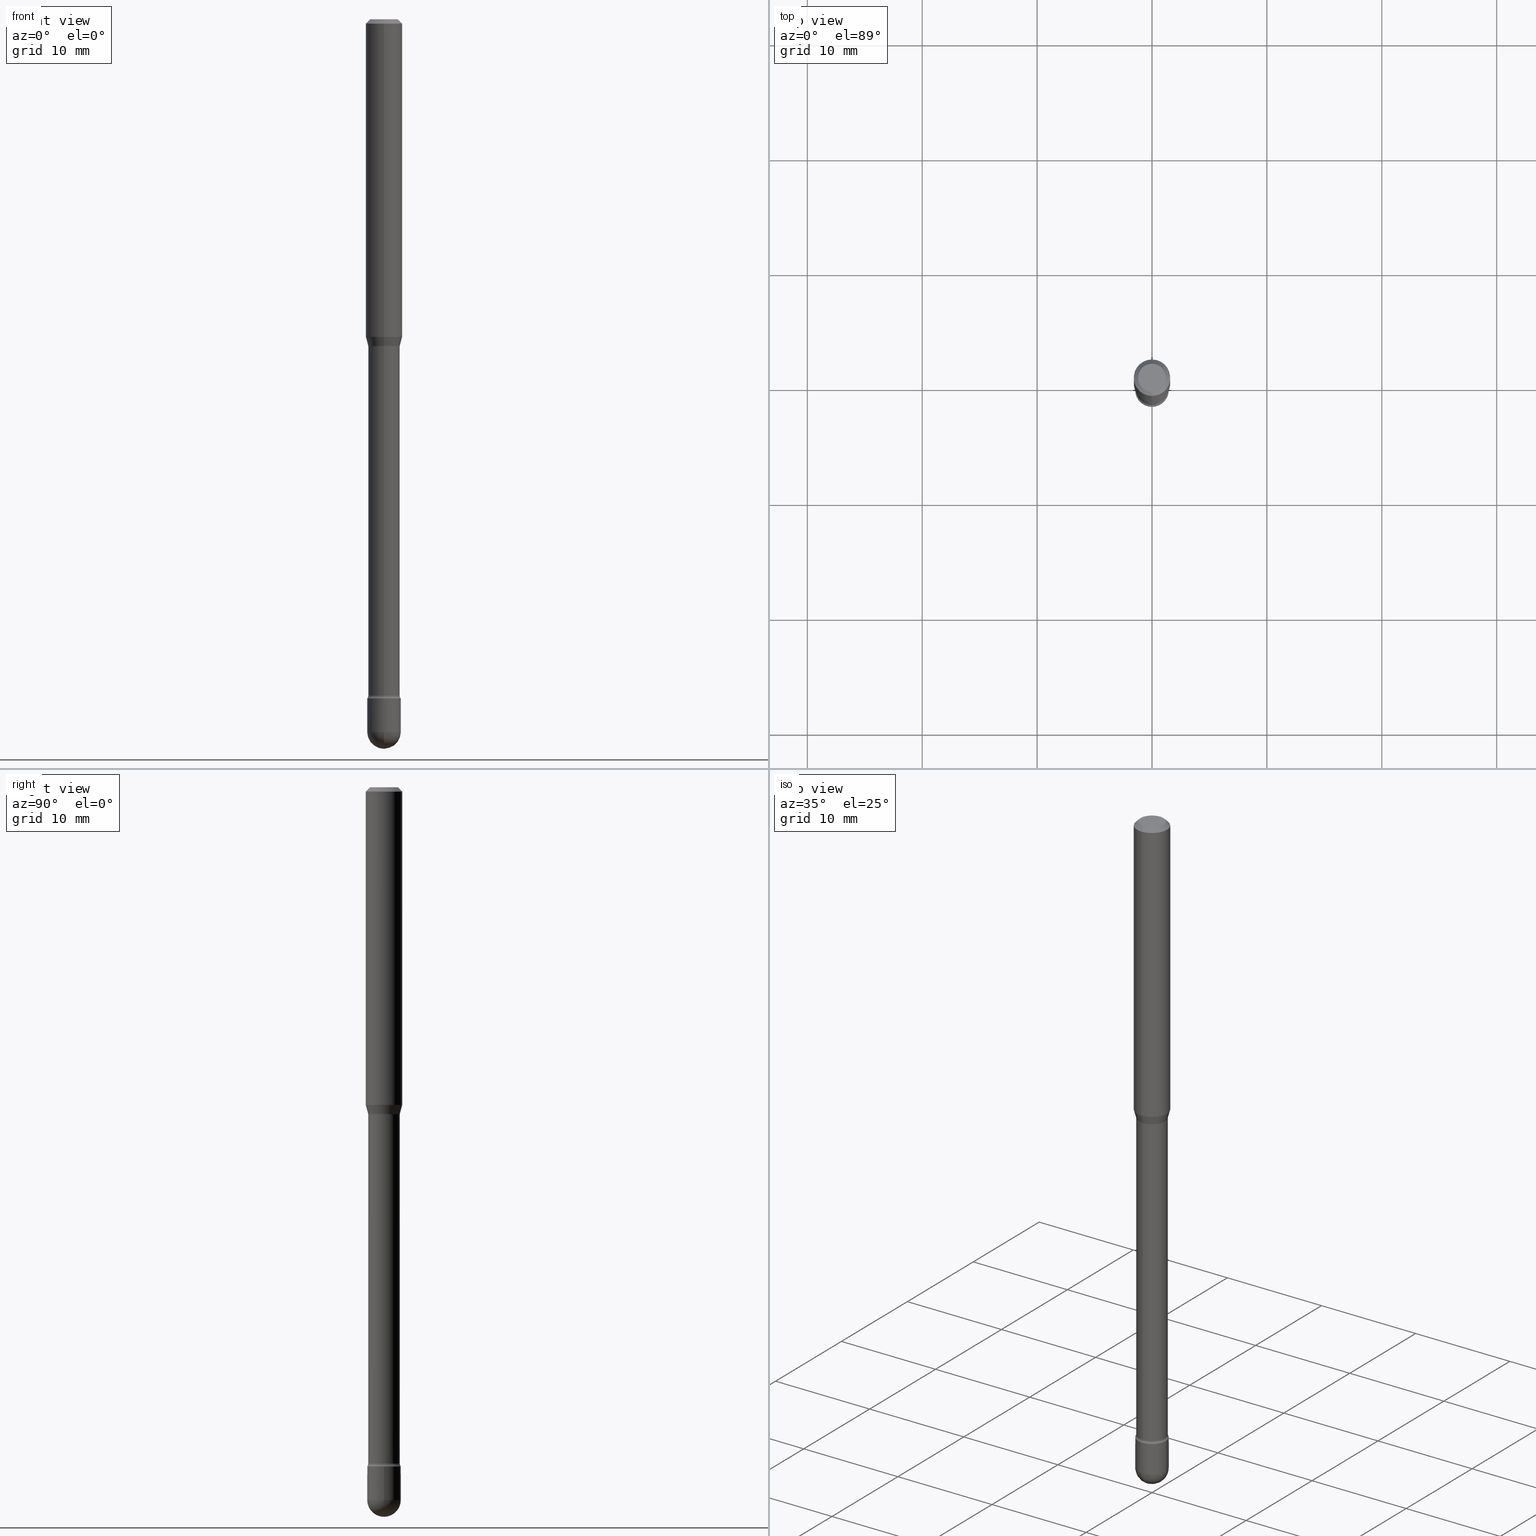
[diagram: canonical four-view strip — front | top / right | iso, engineering-drawing reading convention]
A machine part, canonical four-view strip (front | top / right | iso — engineering-drawing reading convention). The complete STEP part file that produces these views, byte-faithful:
ISO-10303-21;
HEADER;
FILE_DESCRIPTION (( 'STEP AP203' ),
    '1' );
FILE_NAME ('09581.STEP',
    '2024-04-10T01:03:16',
    ( '' ),
    ( '' ),
    'SwSTEP 2.0',
    'SolidWorks 2023',
    '' );
FILE_SCHEMA (( 'CONFIG_CONTROL_DESIGN' ));
ENDSEC;

DATA;
#1 = EDGE_CURVE ( 'NONE', #179, #402, #262, .T. ) ;
#2 = EDGE_LOOP ( 'NONE', ( #70, #46, #177, #335 ) ) ;
#3 = CYLINDRICAL_SURFACE ( 'NONE', #557, 0.05750000000000000250 ) ;
#4 = APPROVAL_DATE_TIME ( #219, #93 ) ;
#5 = CARTESIAN_POINT ( 'NONE',  ( 0.000000000000000000, 0.000000000000000000, 0.000000000000000000 ) ) ;
#6 = CYLINDRICAL_SURFACE ( 'NONE', #452, 0.06250000000000000000 ) ;
#7 = EDGE_CURVE ( 'NONE', #497, #291, #302, .T. ) ;
#8 = ORIENTED_EDGE ( 'NONE', *, *, #548, .T. ) ;
#9 = AXIS2_PLACEMENT_3D ( 'NONE', #227, #488, #313 ) ;
#10 = CARTESIAN_POINT ( 'NONE',  ( 5.973057559107196227E-29, -8.527943170124383355E-15, -2.442499999999999893 ) ) ;
#11 = EDGE_CURVE ( 'NONE', #115, #375, #551, .T. ) ;
#12 = EDGE_LOOP ( 'NONE', ( #360, #71, #138, #388 ) ) ;
#13 = CARTESIAN_POINT ( 'NONE',  ( 5.690581255685221829E-29, -8.124712384723820393E-15, -2.326999999999999957 ) ) ;
#14 = PLANE ( 'NONE',  #499 ) ;
#15 = AXIS2_PLACEMENT_3D ( 'NONE', #44, #309, #403 ) ;
#16 = AXIS2_PLACEMENT_3D ( 'NONE', #429, #304, #475 ) ;
#17 = CARTESIAN_POINT ( 'NONE',  ( -3.774291327289152172E-16, -0.05405000000000391436, -1.121974787463811074 ) ) ;
#18 = COORDINATED_UNIVERSAL_TIME_OFFSET ( 5, 0, .BEHIND. ) ;
#19 = DIRECTION ( 'NONE',  ( -2.445458210436279208E-29, 3.491496512558581868E-15, 1.000000000000000000 ) ) ;
#20 = CARTESIAN_POINT ( 'NONE',  ( -1.169113584055446105E-44, 1.669184350826100908E-30, 4.780733988912460139E-16 ) ) ;
#21 = TOROIDAL_SURFACE ( 'NONE', #97, 0.06905000000000000027, 0.01499999999999998904 ) ;
#22 = CIRCLE ( 'NONE', #346, 0.05750000000000000250 ) ;
#23 = AXIS2_PLACEMENT_3D ( 'NONE', #301, #24, #430 ) ;
#24 = DIRECTION ( 'NONE',  ( -2.445468806185136597E-29, 3.491481338843145583E-15, 1.000000000000000000 ) ) ;
#25 = CARTESIAN_POINT ( 'NONE',  ( 3.963052108702531075E-16, 0.05404999999999203497, -2.317429341715430802 ) ) ;
#26 = EDGE_CURVE ( 'NONE', #137, #530, #174, .T. ) ;
#27 = ORIENTED_EDGE ( 'NONE', *, *, #415, .F. ) ;
#28 = DIRECTION ( 'NONE',  ( -7.105427357601000281E-15, -1.000000000000000000, 0.000000000000000000 ) ) ;
#29 = FACE_OUTER_BOUND ( 'NONE', #400, .T. ) ;
#30 = AXIS2_PLACEMENT_3D ( 'NONE', #193, #279, #464 ) ;
#31 = CONICAL_SURFACE ( 'NONE', #558, 0.05456111260566398613, 0.2617993877991491303 ) ;
#32 = DIRECTION ( 'NONE',  ( 1.000000000000000000, -7.105427357601001070E-15, 4.926315694366502684E-29 ) ) ;
#33 = ORIENTED_EDGE ( 'NONE', *, *, #401, .T. ) ;
#34 = CARTESIAN_POINT ( 'NONE',  ( -0.05750000000000000250, -7.917748049744133834E-15, -2.326999999999999957 ) ) ;
#35 = LENGTH_MEASURE_WITH_UNIT ( LENGTH_MEASURE( 0.02539999999999999897 ), #259 );
#36 = ORIENTED_EDGE ( 'NONE', *, *, #78, .F. ) ;
#37 = DESIGN_CONTEXT ( 'detailed design', #245, 'design' ) ;
#38 = EDGE_CURVE ( 'NONE', #447, #264, #275, .T. ) ;
#39 = EDGE_LOOP ( 'NONE', ( #36, #271, #480, #63 ) ) ;
#40 = FACE_OUTER_BOUND ( 'NONE', #108, .T. ) ;
#41 = LOCAL_TIME ( 21, 3, 16.00000000000000000, #516 ) ;
#42 = EDGE_LOOP ( 'NONE', ( #380, #83 ) ) ;
#43 = CALENDAR_DATE ( 2024, 9, 4 ) ;
#44 = CARTESIAN_POINT ( 'NONE',  ( 4.906297590424068657E-16, 0.06904999999999206217, -2.317429341715430802 ) ) ;
#45 = SECURITY_CLASSIFICATION_LEVEL ( 'unclassified' ) ;
#46 = ORIENTED_EDGE ( 'NONE', *, *, #195, .T. ) ;
#47 = DIRECTION ( 'NONE',  ( 6.982962677686265922E-15, 1.000000000000000000, -3.483106191921935554E-15 ) ) ;
#48 = VERTEX_POINT ( 'NONE', #34 ) ;
#49 = APPLICATION_PROTOCOL_DEFINITION ( 'international standard', 'config_control_design', 1994, #117 ) ;
#50 = EDGE_CURVE ( 'NONE', #225, #179, #72, .T. ) ;
#51 = CARTESIAN_POINT ( 'NONE',  ( 2.661793642945445854E-29, -3.800368855960374326E-15, -1.088464170676043397 ) ) ;
#52 = CIRCLE ( 'NONE', #348, 0.05750000000000007189 ) ;
#53 = VERTEX_POINT ( 'NONE', #417 ) ;
#54 = CARTESIAN_POINT ( 'NONE',  ( 2.734248488522927990E-29, -3.903816070708165479E-15, -1.118092501787273374 ) ) ;
#55 = ORIENTED_EDGE ( 'NONE', *, *, #300, .T. ) ;
#56 = CARTESIAN_POINT ( 'NONE',  ( 4.015203539670203189E-16, 0.05749999999999150929, -2.442500000000000338 ) ) ;
#57 = EDGE_CURVE ( 'NONE', #144, #264, #243, .T. ) ;
#58 = CALENDAR_DATE ( 2024, 9, 4 ) ;
#59 = ORIENTED_EDGE ( 'NONE', *, *, #26, .T. ) ;
#60 = DIRECTION ( 'NONE',  ( 1.000000000000000000, -6.982962677686265922E-15, 4.876176775795935793E-29 ) ) ;
#61 = AXIS2_PLACEMENT_3D ( 'NONE', #321, #187, #365 ) ;
#62 = DIRECTION ( 'NONE',  ( -6.982962677686265922E-15, -1.000000000000000000, 3.491496512558582263E-15 ) ) ;
#63 = ORIENTED_EDGE ( 'NONE', *, *, #38, .F. ) ;
#64 = DIRECTION ( 'NONE',  ( -2.445458210436279208E-29, 3.491496512558581868E-15, 1.000000000000000000 ) ) ;
#65 = CARTESIAN_POINT ( 'NONE',  ( -4.085620730619980656E-16, -0.05750000000000856509, -2.442499999999999893 ) ) ;
#66 = EDGE_CURVE ( 'NONE', #438, #53, #408, .T. ) ;
#67 = DIRECTION ( 'NONE',  ( -6.982962677686265922E-15, -1.000000000000000000, 2.503475335454092652E-15 ) ) ;
#68 = DIRECTION ( 'NONE',  ( 1.839019923739592427E-15, 0.2588190451025238481, 0.9659258262890675351 ) ) ;
#69 = ORIENTED_EDGE ( 'NONE', *, *, #347, .F. ) ;
#70 = ORIENTED_EDGE ( 'NONE', *, *, #555, .F. ) ;
#71 = ORIENTED_EDGE ( 'NONE', *, *, #468, .F. ) ;
#72 = LINE ( 'NONE', #562, #190 ) ;
#73 = CC_DESIGN_PERSON_AND_ORGANIZATION_ASSIGNMENT ( #171, #354, ( #113 ) ) ;
#74 = DIRECTION ( 'NONE',  ( -2.445458210436279208E-29, 3.491496512558581868E-15, 1.000000000000000000 ) ) ;
#75 = AXIS2_PLACEMENT_3D ( 'NONE', #54, #127, #446 ) ;
#76 = AXIS2_PLACEMENT_3D ( 'NONE', #253, #343, #432 ) ;
#77 = CARTESIAN_POINT ( 'NONE',  ( 3.840629472727447874E-16, 0.04749999999999999362, -2.485923956665947374E-16 ) ) ;
#78 = EDGE_CURVE ( 'NONE', #210, #447, #373, .T. ) ;
#79 = COORDINATED_UNIVERSAL_TIME_OFFSET ( 5, 0, .BEHIND. ) ;
#80 = UNCERTAINTY_MEASURE_WITH_UNIT (LENGTH_MEASURE( 1.000000000000000082E-05 ), #267, 'distance_accuracy_value', 'NONE');
#81 = DIRECTION ( 'NONE',  ( 6.982962677686266711E-15, 1.000000000000000000, -4.751039988981321814E-15 ) ) ;
#82 = APPROVAL_STATUS ( 'not_yet_approved' ) ;
#83 = ORIENTED_EDGE ( 'NONE', *, *, #183, .F. ) ;
#84 = AXIS2_PLACEMENT_3D ( 'NONE', #89, #451, #96 ) ;
#85 = DIRECTION ( 'NONE',  ( -6.982962677686265922E-15, -1.000000000000000000, 3.491496512558581474E-15 ) ) ;
#86 = VECTOR ( 'NONE', #151, 39.37007874015748143 ) ;
#87 = PRODUCT_DEFINITION ( 'UNKNOWN', '', #113, #37 ) ;
#88 = CARTESIAN_POINT ( 'NONE',  ( 2.743742455905876148E-29, -3.917371057608552189E-15, -1.121974787463811074 ) ) ;
#89 = CARTESIAN_POINT ( 'NONE',  ( 5.973057559107196227E-29, -8.527943170124383355E-15, -2.442499999999999893 ) ) ;
#90 = CARTESIAN_POINT ( 'NONE',  ( 0.000000000000000000, 0.000000000000000000, 0.000000000000000000 ) ) ;
#91 = FACE_OUTER_BOUND ( 'NONE', #246, .T. ) ;
#92 = ORIENTED_EDGE ( 'NONE', *, *, #555, .T. ) ;
#93 = APPROVAL ( #82, 'UNSPECIFIED' ) ;
#94 = PERSON_AND_ORGANIZATION ( #218, #396 ) ;
#95 = CARTESIAN_POINT ( 'NONE',  ( 2.743754344068948832E-29, -3.917354033082401123E-15, -1.121974787463811296 ) ) ;
#96 = DIRECTION ( 'NONE',  ( 6.982962677686265922E-15, 1.000000000000000000, 0.000000000000000000 ) ) ;
#97 = AXIS2_PLACEMENT_3D ( 'NONE', #95, #358, #450 ) ;
#98 = AXIS2_PLACEMENT_3D ( 'NONE', #201, #556, #298 ) ;
#99 =( GEOMETRIC_REPRESENTATION_CONTEXT ( 3 ) GLOBAL_UNCERTAINTY_ASSIGNED_CONTEXT ( ( #80 ) ) GLOBAL_UNIT_ASSIGNED_CONTEXT ( ( #267, #532, #272 ) ) REPRESENTATION_CONTEXT ( 'NONE', 'WORKASPACE' ) );
#100 = CARTESIAN_POINT ( 'NONE',  ( 2.734248488522927990E-29, -3.903816070708165479E-15, -1.118092501787273374 ) ) ;
#101 = DIRECTION ( 'NONE',  ( -2.445468806185136597E-29, 3.491481338843145583E-15, 1.000000000000000000 ) ) ;
#102 = PRODUCT ( '09581', '09581', '', ( #181 ) ) ;
#103 = APPROVAL_ROLE ( '' ) ;
#104 = CARTESIAN_POINT ( 'NONE',  ( 5.667201165703240905E-29, -8.091261300686981315E-15, -2.317429341715430802 ) ) ;
#105 = CIRCLE ( 'NONE', #292, 0.05750000000000000250 ) ;
#106 = CARTESIAN_POINT ( 'NONE',  ( 2.743754344068948832E-29, -3.917354033082401123E-15, -1.121974787463811296 ) ) ;
#107 = FACE_OUTER_BOUND ( 'NONE', #317, .T. ) ;
#108 = EDGE_LOOP ( 'NONE', ( #55, #145, #242, #407, #381 ) ) ;
#109 = ORIENTED_EDGE ( 'NONE', *, *, #153, .F. ) ;
#110 = CARTESIAN_POINT ( 'NONE',  ( 3.668187315654438745E-31, -5.237244768837902064E-17, -0.01500000000000008271 ) ) ;
#111 = EDGE_LOOP ( 'NONE', ( #549, #261, #204, #109 ) ) ;
#112 = CIRCLE ( 'NONE', #525, 0.05750000000000000250 ) ;
#113 = PRODUCT_DEFINITION_FORMATION_WITH_SPECIFIED_SOURCE ( 'ANY', '', #102, .NOT_KNOWN. ) ;
#114 = DIRECTION ( 'NONE',  ( -6.982962677686265922E-15, -1.000000000000000000, 3.491496512558581474E-15 ) ) ;
#115 = VERTEX_POINT ( 'NONE', #454 ) ;
#116 = ORIENTED_EDGE ( 'NONE', *, *, #457, .F. ) ;
#117 = APPLICATION_CONTEXT ( 'configuration controlled 3d designs of mechanical parts and assemblies' ) ;
#118 = CARTESIAN_POINT ( 'NONE',  ( 4.440892098500893388E-16, 0.06249999999999993755, -0.01500000000000030129 ) ) ;
#119 = DIMENSIONAL_EXPONENTS ( 1.000000000000000000, 0.000000000000000000, 0.000000000000000000, 0.000000000000000000, 0.000000000000000000, 0.000000000000000000, 0.000000000000000000 ) ;
#120 = CARTESIAN_POINT ( 'NONE',  ( -3.809982129783619050E-16, -0.05456111260566789273, -1.118092501787273374 ) ) ;
#121 = ORIENTED_EDGE ( 'NONE', *, *, #153, .T. ) ;
#122 = ORIENTED_EDGE ( 'NONE', *, *, #468, .T. ) ;
#123 = DIRECTION ( 'NONE',  ( -6.982962677686265922E-15, -1.000000000000000000, 3.483106191921935554E-15 ) ) ;
#124 = AXIS2_PLACEMENT_3D ( 'NONE', #295, #553, #154 ) ;
#125 = EDGE_CURVE ( 'NONE', #530, #554, #543, .T. ) ;
#126 = DATE_AND_TIME ( #481, #41 ) ;
#127 = DIRECTION ( 'NONE',  ( -2.445458210436279208E-29, 3.491496512558581868E-15, 1.000000000000000000 ) ) ;
#128 = ORIENTED_EDGE ( 'NONE', *, *, #338, .T. ) ;
#129 = APPROVAL ( #495, 'UNSPECIFIED' ) ;
#130 = CARTESIAN_POINT ( 'NONE',  ( -1.169113584055446105E-44, 1.669184350826100908E-30, 4.780733988912460139E-16 ) ) ;
#131 = ORIENTED_EDGE ( 'NONE', *, *, #1, .T. ) ;
#132 = ADVANCED_FACE ( 'NONE', ( #231 ), #341, .T. ) ;
#133 = PERSON_AND_ORGANIZATION_ROLE ( 'design_supplier' ) ;
#134 = ORIENTED_EDGE ( 'NONE', *, *, #50, .T. ) ;
#135 = TOROIDAL_SURFACE ( 'NONE', #536, 0.06905000000000000027, 0.01499999999999998904 ) ;
#136 = FACE_OUTER_BOUND ( 'NONE', #216, .T. ) ;
#137 = VERTEX_POINT ( 'NONE', #412 ) ;
#138 = ORIENTED_EDGE ( 'NONE', *, *, #415, .T. ) ;
#139 = DIRECTION ( 'NONE',  ( -6.982962677686265922E-15, -1.000000000000000000, 2.527148930309216761E-15 ) ) ;
#140 = CARTESIAN_POINT ( 'NONE',  ( 3.668187315654438745E-31, -5.237244768837902064E-17, -0.01500000000000008271 ) ) ;
#141 = ORIENTED_EDGE ( 'NONE', *, *, #311, .T. ) ;
#142 = CARTESIAN_POINT ( 'NONE',  ( -0.05750000000000000250, 4.085620730620576246E-16, -2.828387676896570712E-30 ) ) ;
#143 = CIRCLE ( 'NONE', #312, 0.05404999999999999388 ) ;
#144 = VERTEX_POINT ( 'NONE', #270 ) ;
#145 = ORIENTED_EDGE ( 'NONE', *, *, #282, .T. ) ;
#146 = FACE_OUTER_BOUND ( 'NONE', #508, .T. ) ;
#147 = CARTESIAN_POINT ( 'NONE',  ( 5.690605911992812897E-29, -8.124677075487999464E-15, -2.326999999999999957 ) ) ;
#148 = CARTESIAN_POINT ( 'NONE',  ( 4.015203539670172127E-16, 0.05749999999999187705, -2.327000000000000401 ) ) ;
#149 = CC_DESIGN_PERSON_AND_ORGANIZATION_ASSIGNMENT ( #409, #362, ( #102 ) ) ;
#150 = LOCAL_TIME ( 21, 3, 16.00000000000000000, #18 ) ;
#151 = DIRECTION ( 'NONE',  ( -2.445458210436279208E-29, 3.491496512558582263E-15, 1.000000000000000000 ) ) ;
#152 = CARTESIAN_POINT ( 'NONE',  ( 5.667176610803941573E-29, -8.091296464700355327E-15, -2.317429341715430802 ) ) ;
#153 = EDGE_CURVE ( 'NONE', #331, #115, #434, .T. ) ;
#154 = DIRECTION ( 'NONE',  ( -6.982962677686267499E-15, -1.000000000000000000, 0.000000000000000000 ) ) ;
#155 = AXIS2_PLACEMENT_3D ( 'NONE', #10, #182, #363 ) ;
#156 = CIRCLE ( 'NONE', #374, 0.01499999999999999424 ) ;
#157 = ORIENTED_EDGE ( 'NONE', *, *, #455, .F. ) ;
#158 = FACE_OUTER_BOUND ( 'NONE', #12, .T. ) ;
#159 = LINE ( 'NONE', #563, #265 ) ;
#160 = ADVANCED_FACE ( 'NONE', ( #260 ), #6, .T. ) ;
#161 = DIRECTION ( 'NONE',  ( -2.445458210436279208E-29, 3.491496512558581868E-15, 1.000000000000000000 ) ) ;
#162 = ADVANCED_FACE ( 'NONE', ( #224 ), #533, .T. ) ;
#163 = AXIS2_PLACEMENT_3D ( 'NONE', #413, #519, #393 ) ;
#164 = APPROVAL_ROLE ( '' ) ;
#165 = AXIS2_PLACEMENT_3D ( 'NONE', #290, #161, #114 ) ;
#166 = EDGE_LOOP ( 'NONE', ( #223, #405, #256, #184 ) ) ;
#167 = PERSON_AND_ORGANIZATION ( #218, #396 ) ;
#168 = ORIENTED_EDGE ( 'NONE', *, *, #311, .F. ) ;
#169 = DIRECTION ( 'NONE',  ( 1.000000000000000000, -6.982962677686265922E-15, 4.876176775795935232E-29 ) ) ;
#170 = ORIENTED_EDGE ( 'NONE', *, *, #395, .F. ) ;
#171 = PERSON_AND_ORGANIZATION ( #218, #396 ) ;
#172 = EDGE_LOOP ( 'NONE', ( #234, #501, #278, #439 ) ) ;
#173 = DIRECTION ( 'NONE',  ( -2.445458210436279208E-29, 3.491496512558581868E-15, 1.000000000000000000 ) ) ;
#174 = CIRCLE ( 'NONE', #163, 0.05405000000000013266 ) ;
#175 = CARTESIAN_POINT ( 'NONE',  ( 5.973057559107196227E-29, -8.527943170124383355E-15, -2.442499999999999893 ) ) ;
#176 = PRODUCT_RELATED_PRODUCT_CATEGORY ( 'detail', '', ( #102 ) ) ;
#177 = ORIENTED_EDGE ( 'NONE', *, *, #471, .T. ) ;
#178 = LOCAL_TIME ( 21, 3, 16.00000000000000000, #445 ) ;
#179 = VERTEX_POINT ( 'NONE', #478 ) ;
#180 = DIRECTION ( 'NONE',  ( -2.445468806185136877E-29, 3.491481338843145188E-15, 1.000000000000000000 ) ) ;
#181 = MECHANICAL_CONTEXT ( 'NONE', #117, 'mechanical' ) ;
#182 = DIRECTION ( 'NONE',  ( -2.445468806185136597E-29, 3.491481338843145583E-15, 1.000000000000000000 ) ) ;
#183 = EDGE_CURVE ( 'NONE', #554, #433, #22, .T. ) ;
#184 = ORIENTED_EDGE ( 'NONE', *, *, #195, .F. ) ;
#185 = DIRECTION ( 'NONE',  ( -2.445468806185136597E-29, 3.491481338843145583E-15, 1.000000000000000000 ) ) ;
#186 = ADVANCED_FACE ( 'NONE', ( #442 ), #308, .T. ) ;
#187 = DIRECTION ( 'NONE',  ( -1.000000000000000000, 6.982962677686265922E-15, -4.883557194083112340E-29 ) ) ;
#188 = DIRECTION ( 'NONE',  ( -2.438088387897960049E-29, 3.491481338843145188E-15, 1.000000000000000000 ) ) ;
#189 = ADVANCED_FACE ( 'NONE', ( #521 ), #21, .F. ) ;
#190 = VECTOR ( 'NONE', #269, 39.37007874015748143 ) ;
#191 = CIRCLE ( 'NONE', #98, 0.04749999999999999362 ) ;
#192 = CC_DESIGN_DATE_AND_TIME_ASSIGNMENT ( #214, #397, ( #87 ) ) ;
#193 = CARTESIAN_POINT ( 'NONE',  ( 5.973057559107196227E-29, -8.527943170124383355E-15, -2.442499999999999893 ) ) ;
#194 = DIRECTION ( 'NONE',  ( 1.000000000000000000, -6.982962677686273810E-15, 0.000000000000000000 ) ) ;
#195 = EDGE_CURVE ( 'NONE', #53, #438, #427, .T. ) ;
#196 = DIRECTION ( 'NONE',  ( -2.445458210436279208E-29, 3.491496512558581868E-15, 1.000000000000000000 ) ) ;
#197 = AXIS2_PLACEMENT_3D ( 'NONE', #5, #448, #315 ) ;
#198 = APPROVAL_PERSON_ORGANIZATION ( #534, #129, #103 ) ;
#199 = DIRECTION ( 'NONE',  ( -1.000000000000000000, 7.105427357601001070E-15, -4.926315508542082329E-29 ) ) ;
#200 = ADVANCED_FACE ( 'NONE', ( #40 ), #3, .T. ) ;
#201 = CARTESIAN_POINT ( 'NONE',  ( 2.023475808552922307E-45, -2.889157115507960556E-31, -8.274631132006210161E-17 ) ) ;
#202 = ADVANCED_BREP_SHAPE_REPRESENTATION ( '09581', ( #436, #258, #229 ), #99 ) ;
#203 = CARTESIAN_POINT ( 'NONE',  ( 4.364351673553919652E-16, 0.06249999999999995143, -0.01500000000000030129 ) ) ;
#204 = ORIENTED_EDGE ( 'NONE', *, *, #294, .F. ) ;
#205 = CLOSED_SHELL ( 'NONE', ( #200, #307, #378, #186, #162 ) ) ;
#206 = CONICAL_SURFACE ( 'NONE', #566, 0.06250000000000000000, 0.7853981633974483900 ) ;
#207 = CARTESIAN_POINT ( 'NONE',  ( -4.364351673553650454E-16, -0.06250000000000381639, -1.088464170676042952 ) ) ;
#208 = ADVANCED_FACE ( 'NONE', ( #136 ), #352, .T. ) ;
#209 = LINE ( 'NONE', #389, #485 ) ;
#210 = VERTEX_POINT ( 'NONE', #487 ) ;
#211 = ORIENTED_EDGE ( 'NONE', *, *, #531, .F. ) ;
#212 = DIRECTION ( 'NONE',  ( 0.000000000000000000, 0.000000000000000000, 1.000000000000000000 ) ) ;
#213 = VECTOR ( 'NONE', #327, 39.37007874015748143 ) ;
#214 = DATE_AND_TIME ( #351, #526 ) ;
#215 = CIRCLE ( 'NONE', #277, 0.06250000000000000000 ) ;
#216 = EDGE_LOOP ( 'NONE', ( #59, #523, #288, #168 ) ) ;
#217 = CARTESIAN_POINT ( 'NONE',  ( 0.000000000000000000, 0.000000000000000000, 0.000000000000000000 ) ) ;
#218 = PERSON ( 'UNSPECIFIED', 'UNSPECIFIED', 'UNSPECIFIED', ('UNSPECIFIED'), ('UNSPECIFIED'), ('UNSPECIFIED') ) ;
#219 = DATE_AND_TIME ( #43, #178 ) ;
#220 = DIRECTION ( 'NONE',  ( -6.982962677686265922E-15, -1.000000000000000000, 4.370956789862821150E-15 ) ) ;
#221 = CC_DESIGN_PERSON_AND_ORGANIZATION_ASSIGNMENT ( #222, #233, ( #410 ) ) ;
#222 = PERSON_AND_ORGANIZATION ( #218, #396 ) ;
#223 = ORIENTED_EDGE ( 'NONE', *, *, #538, .F. ) ;
#224 = FACE_OUTER_BOUND ( 'NONE', #235, .T. ) ;
#225 = VERTEX_POINT ( 'NONE', #318 ) ;
#226 = EDGE_LOOP ( 'NONE', ( #157, #310, #515, #211 ) ) ;
#227 = CARTESIAN_POINT ( 'NONE',  ( -1.169113584055446105E-44, 1.669184350826100908E-30, 4.780733988912460139E-16 ) ) ;
#228 = DIRECTION ( 'NONE',  ( 2.445458210436279208E-29, -3.491496512558581868E-15, -1.000000000000000000 ) ) ;
#229 = AXIS2_PLACEMENT_3D ( 'NONE', #90, #212, #404 ) ;
#230 = ORIENTED_EDGE ( 'NONE', *, *, #347, .T. ) ;
#231 = FACE_OUTER_BOUND ( 'NONE', #561, .T. ) ;
#232 = EDGE_CURVE ( 'NONE', #264, #144, #143, .T. ) ;
#233 = PERSON_AND_ORGANIZATION_ROLE ( 'classification_officer' ) ;
#234 = ORIENTED_EDGE ( 'NONE', *, *, #511, .T. ) ;
#235 = EDGE_LOOP ( 'NONE', ( #513, #230, #121, #280, #170 ) ) ;
#236 = ORIENTED_EDGE ( 'NONE', *, *, #66, .T. ) ;
#237 = DIRECTION ( 'NONE',  ( -2.445468806185136597E-29, 3.491481338843145583E-15, 1.000000000000000000 ) ) ;
#238 = APPROVAL ( #565, 'UNSPECIFIED' ) ;
#239 = ADVANCED_FACE ( 'NONE', ( #91 ), #394, .F. ) ;
#240 = COORDINATED_UNIVERSAL_TIME_OFFSET ( 5, 0, .BEHIND. ) ;
#241 = CARTESIAN_POINT ( 'NONE',  ( 3.316907271900976096E-16, 0.04749999999999999362, 3.181745943905930804E-17 ) ) ;
#242 = ORIENTED_EDGE ( 'NONE', *, *, #338, .F. ) ;
#243 = CIRCLE ( 'NONE', #419, 0.05404999999999999388 ) ;
#244 = TOROIDAL_SURFACE ( 'NONE', #165, 0.06905000000000015292, 0.01500000000000002547 ) ;
#245 = APPLICATION_CONTEXT ( 'configuration controlled 3d designs of mechanical parts and assemblies' ) ;
#246 = EDGE_LOOP ( 'NONE', ( #251, #273, #449, #8 ) ) ;
#247 = PLANE ( 'NONE',  #546 ) ;
#248 = DIRECTION ( 'NONE',  ( -2.445458210436279208E-29, 3.491496512558581868E-15, 1.000000000000000000 ) ) ;
#249 = CYLINDRICAL_SURFACE ( 'NONE', #250, 0.06250000000000000000 ) ;
#250 = AXIS2_PLACEMENT_3D ( 'NONE', #20, #64, #281 ) ;
#251 = ORIENTED_EDGE ( 'NONE', *, *, #125, .F. ) ;
#252 = DIRECTION ( 'NONE',  ( 2.445458210436279208E-29, -3.491496512558581868E-15, -1.000000000000000000 ) ) ;
#253 = CARTESIAN_POINT ( 'NONE',  ( 5.690581255685221829E-29, -8.124712384723820393E-15, -2.326999999999999957 ) ) ;
#254 = DIRECTION ( 'NONE',  ( -2.445458210436279208E-29, 3.491496512558581868E-15, 1.000000000000000000 ) ) ;
#255 = CARTESIAN_POINT ( 'NONE',  ( 4.906297590423765932E-16, 0.06904999999999608673, -1.121974787463811518 ) ) ;
#256 = ORIENTED_EDGE ( 'NONE', *, *, #491, .T. ) ;
#257 = CARTESIAN_POINT ( 'NONE',  ( 2.734248488522927990E-29, -3.903816070708165479E-15, -1.118092501787273374 ) ) ;
#258 = MANIFOLD_SOLID_BREP ( 'Body-Move/Copy2[2]', #473 ) ;
#259 =( LENGTH_UNIT ( ) NAMED_UNIT ( * ) SI_UNIT ( $, .METRE. ) );
#260 = FACE_OUTER_BOUND ( 'NONE', #2, .T. ) ;
#261 = ORIENTED_EDGE ( 'NONE', *, *, #7, .T. ) ;
#262 = CIRCLE ( 'NONE', #443, 0.06250000000000000000 ) ;
#263 = APPROVAL_ROLE ( '' ) ;
#264 = VERTEX_POINT ( 'NONE', #17 ) ;
#265 = VECTOR ( 'NONE', #465, 39.37007874015748854 ) ;
#266 = DIRECTION ( 'NONE',  ( -2.445458210436279208E-29, 3.491496512558581868E-15, 1.000000000000000000 ) ) ;
#267 =( CONVERSION_BASED_UNIT ( 'INCH', #35 ) LENGTH_UNIT ( ) NAMED_UNIT ( #119 ) );
#268 = ORIENTED_EDGE ( 'NONE', *, *, #511, .F. ) ;
#269 = DIRECTION ( 'NONE',  ( -4.851104656540964275E-15, -0.7071067811865500152, -0.7071067811865450192 ) ) ;
#270 = CARTESIAN_POINT ( 'NONE',  ( 3.840483486783911022E-16, 0.05404999999999607341, -1.121974787463811296 ) ) ;
#271 = ORIENTED_EDGE ( 'NONE', *, *, #457, .T. ) ;
#272 =( NAMED_UNIT ( * ) SI_UNIT ( $, .STERADIAN. ) SOLID_ANGLE_UNIT ( ) );
#273 = ORIENTED_EDGE ( 'NONE', *, *, #26, .F. ) ;
#274 = CARTESIAN_POINT ( 'NONE',  ( 2.661793642945445854E-29, -3.800368855960374326E-15, -1.088464170676043397 ) ) ;
#275 = CIRCLE ( 'NONE', #61, 0.01499999999999999424 ) ;
#276 = DIRECTION ( 'NONE',  ( -1.000000000000000000, 6.982962677686266711E-15, -4.883557194083112901E-29 ) ) ;
#277 = AXIS2_PLACEMENT_3D ( 'NONE', #110, #344, #123 ) ;
#278 = ORIENTED_EDGE ( 'NONE', *, *, #66, .F. ) ;
#279 = DIRECTION ( 'NONE',  ( -1.000000000000000000, 6.982962677686266711E-15, -4.883557194083112901E-29 ) ) ;
#280 = ORIENTED_EDGE ( 'NONE', *, *, #11, .T. ) ;
#281 = DIRECTION ( 'NONE',  ( -6.982962677686265922E-15, -1.000000000000000000, 3.491496512558581474E-15 ) ) ;
#282 = EDGE_CURVE ( 'NONE', #486, #48, #424, .T. ) ;
#283 = FACE_OUTER_BOUND ( 'NONE', #42, .T. ) ;
#284 = AXIS2_PLACEMENT_3D ( 'NONE', #100, #196, #421 ) ;
#285 = AXIS2_PLACEMENT_3D ( 'NONE', #148, #330, #500 ) ;
#286 = APPROVAL_DATE_TIME ( #325, #129 ) ;
#287 = DIRECTION ( 'NONE',  ( -2.445468806185136597E-29, 3.491481338843145583E-15, 1.000000000000000000 ) ) ;
#288 = ORIENTED_EDGE ( 'NONE', *, *, #232, .F. ) ;
#289 = ADVANCED_FACE ( 'NONE', ( #107 ), #135, .F. ) ;
#290 = CARTESIAN_POINT ( 'NONE',  ( 5.667201165703240905E-29, -8.091261300686981315E-15, -2.317429341715430802 ) ) ;
#291 = VERTEX_POINT ( 'NONE', #56 ) ;
#292 = AXIS2_PLACEMENT_3D ( 'NONE', #463, #287, #194 ) ;
#293 = APPROVAL_PERSON_ORGANIZATION ( #94, #238, #164 ) ;
#294 = EDGE_CURVE ( 'NONE', #115, #291, #105, .T. ) ;
#295 = CARTESIAN_POINT ( 'NONE',  ( -4.821735728941811245E-16, -0.06905000000000824367, -2.317429341715430358 ) ) ;
#296 = ORIENTED_EDGE ( 'NONE', *, *, #395, .T. ) ;
#297 = ADVANCED_FACE ( 'NONE', ( #502 ), #366, .T. ) ;
#298 = DIRECTION ( 'NONE',  ( -6.982962677686266711E-15, -1.000000000000000000, 3.491496512558582263E-15 ) ) ;
#299 = ORIENTED_EDGE ( 'NONE', *, *, #359, .F. ) ;
#300 = EDGE_CURVE ( 'NONE', #291, #486, #112, .T. ) ;
#301 = CARTESIAN_POINT ( 'NONE',  ( 5.690605911992812897E-29, -8.124677075487999464E-15, -2.326999999999999957 ) ) ;
#302 = CIRCLE ( 'NONE', #84, 0.05750000000000007189 ) ;
#303 = CIRCLE ( 'NONE', #23, 0.05750000000000000250 ) ;
#304 = DIRECTION ( 'NONE',  ( -2.445458210436279208E-29, 3.491496512558581868E-15, 1.000000000000000000 ) ) ;
#305 = PERSON_AND_ORGANIZATION ( #218, #396 ) ;
#306 = ORIENTED_EDGE ( 'NONE', *, *, #1, .F. ) ;
#307 = ADVANCED_FACE ( 'NONE', ( #324 ), #425, .T. ) ;
#308 = SPHERICAL_SURFACE ( 'NONE', #484, 0.05750000000000007189 ) ;
#309 = DIRECTION ( 'NONE',  ( 1.000000000000000000, -7.105427357601001070E-15, 4.926315694366502684E-29 ) ) ;
#310 = ORIENTED_EDGE ( 'NONE', *, *, #125, .T. ) ;
#311 = EDGE_CURVE ( 'NONE', #137, #264, #456, .T. ) ;
#312 = AXIS2_PLACEMENT_3D ( 'NONE', #88, #489, #139 ) ;
#313 = DIRECTION ( 'NONE',  ( -6.982962677686265922E-15, -1.000000000000000000, 3.491496512558581474E-15 ) ) ;
#314 = AXIS2_PLACEMENT_3D ( 'NONE', #384, #560, #509 ) ;
#315 = DIRECTION ( 'NONE',  ( 1.000000000000000000, -6.982962677686265922E-15, 4.876176775795935232E-29 ) ) ;
#316 = DIRECTION ( 'NONE',  ( -6.982962677686265922E-15, -1.000000000000000000, 3.483106191921935554E-15 ) ) ;
#317 = EDGE_LOOP ( 'NONE', ( #116, #268, #431, #361 ) ) ;
#318 = CARTESIAN_POINT ( 'NONE',  ( -3.773273898774340269E-16, -0.04749999999999999362, 8.309977302647053418E-17 ) ) ;
#319 = CARTESIAN_POINT ( 'NONE',  ( 4.440892098500625669E-16, 0.06250000000000000000, 2.598548668563346965E-16 ) ) ;
#320 = DIRECTION ( 'NONE',  ( -6.982962677686265922E-15, -1.000000000000000000, 4.751039988981327336E-15 ) ) ;
#321 = CARTESIAN_POINT ( 'NONE',  ( -4.821735728942093263E-16, -0.06905000000000392768, -1.121974787463811074 ) ) ;
#322 = VECTOR ( 'NONE', #180, 39.37007874015748143 ) ;
#323 = AXIS2_PLACEMENT_3D ( 'NONE', #147, #237, #426 ) ;
#324 = FACE_OUTER_BOUND ( 'NONE', #498, .T. ) ;
#325 = DATE_AND_TIME ( #58, #559 ) ;
#326 = ORIENTED_EDGE ( 'NONE', *, *, #7, .F. ) ;
#327 = DIRECTION ( 'NONE',  ( -2.445468806185136877E-29, 3.491481338843145188E-15, 1.000000000000000000 ) ) ;
#328 = LINE ( 'NONE', #540, #86 ) ;
#329 = DATE_AND_TIME ( #371, #150 ) ;
#330 = DIRECTION ( 'NONE',  ( -2.445458210436278647E-29, 3.491496512558582263E-15, 1.000000000000000000 ) ) ;
#331 = VERTEX_POINT ( 'NONE', #65 ) ;
#332 = AXIS2_PLACEMENT_3D ( 'NONE', #51, #266, #220 ) ;
#333 = CC_DESIGN_APPROVAL ( #93, ( #113 ) ) ;
#334 = ORIENTED_EDGE ( 'NONE', *, *, #494, .F. ) ;
#335 = ORIENTED_EDGE ( 'NONE', *, *, #490, .F. ) ;
#336 = ADVANCED_FACE ( 'NONE', ( #539 ), #249, .T. ) ;
#337 = DIRECTION ( 'NONE',  ( -2.445458210436279208E-29, 3.491496512558582263E-15, 1.000000000000000000 ) ) ;
#338 = EDGE_CURVE ( 'NONE', #375, #48, #537, .T. ) ;
#339 = PRODUCT_DEFINITION_SHAPE ( 'NONE', 'NONE',  #87 ) ;
#340 = LINE ( 'NONE', #506, #453 ) ;
#341 = CONICAL_SURFACE ( 'NONE', #459, 0.06250000000000000000, 0.7853981633974483900 ) ;
#342 = CIRCLE ( 'NONE', #507, 0.05750000000000000250 ) ;
#343 = DIRECTION ( 'NONE',  ( -2.445458210436279208E-29, 3.491496512558581868E-15, 1.000000000000000000 ) ) ;
#344 = DIRECTION ( 'NONE',  ( -2.445458210436279208E-29, 3.491496512558581868E-15, 1.000000000000000000 ) ) ;
#345 = CARTESIAN_POINT ( 'NONE',  ( 6.116130618544232584E-29, -8.725182487560315771E-15, -2.500000000000000000 ) ) ;
#346 = AXIS2_PLACEMENT_3D ( 'NONE', #13, #406, #320 ) ;
#347 = EDGE_CURVE ( 'NONE', #486, #331, #342, .T. ) ;
#348 = AXIS2_PLACEMENT_3D ( 'NONE', #472, #199, #28 ) ;
#349 = CYLINDRICAL_SURFACE ( 'NONE', #9, 0.05405000000000006327 ) ;
#350 = CARTESIAN_POINT ( 'NONE',  ( -1.169113584055446105E-44, 1.669184350826100908E-30, 4.780733988912460139E-16 ) ) ;
#351 = CALENDAR_DATE ( 2024, 9, 4 ) ;
#352 = CYLINDRICAL_SURFACE ( 'NONE', #385, 0.05405000000000006327 ) ;
#353 = EDGE_LOOP ( 'NONE', ( #128, #296 ) ) ;
#354 = PERSON_AND_ORGANIZATION_ROLE ( 'creator' ) ;
#355 = AXIS2_PLACEMENT_3D ( 'NONE', #274, #524, #529 ) ;
#356 = DIRECTION ( 'NONE',  ( -2.445458210436279208E-29, 3.491496512558582263E-15, 1.000000000000000000 ) ) ;
#357 = CIRCLE ( 'NONE', #314, 0.04749999999999999362 ) ;
#358 = DIRECTION ( 'NONE',  ( -2.445458210436279208E-29, 3.491496512558581868E-15, 1.000000000000000000 ) ) ;
#359 = EDGE_CURVE ( 'NONE', #530, #144, #328, .T. ) ;
#360 = ORIENTED_EDGE ( 'NONE', *, *, #50, .F. ) ;
#361 = ORIENTED_EDGE ( 'NONE', *, *, #232, .T. ) ;
#362 = PERSON_AND_ORGANIZATION_ROLE ( 'design_owner' ) ;
#363 = DIRECTION ( 'NONE',  ( 1.000000000000000000, -6.982962677686273810E-15, 0.000000000000000000 ) ) ;
#364 = FACE_OUTER_BOUND ( 'NONE', #353, .T. ) ;
#365 = DIRECTION ( 'NONE',  ( -6.982962677686266711E-15, -1.000000000000000000, 0.000000000000000000 ) ) ;
#366 = CONICAL_SURFACE ( 'NONE', #284, 0.05456111260566398613, 0.2617993877991491303 ) ;
#367 = CC_DESIGN_APPROVAL ( #238, ( #87 ) ) ;
#368 = DIRECTION ( 'NONE',  ( 1.000000000000000000, -6.982962677686273810E-15, 0.000000000000000000 ) ) ;
#369 = DIRECTION ( 'NONE',  ( -2.445458210436279208E-29, 3.491496512558582263E-15, 1.000000000000000000 ) ) ;
#370 = DIRECTION ( 'NONE',  ( 1.000000000000000000, -6.982962677686273810E-15, 0.000000000000000000 ) ) ;
#371 = CALENDAR_DATE ( 2024, 9, 4 ) ;
#372 = CARTESIAN_POINT ( 'NONE',  ( -3.774291327289431232E-16, -0.05405000000000006327, 6.667887853950376346E-16 ) ) ;
#373 = CIRCLE ( 'NONE', #75, 0.05456111260566398613 ) ;
#374 = AXIS2_PLACEMENT_3D ( 'NONE', #255, #32, #550 ) ;
#375 = VERTEX_POINT ( 'NONE', #458 ) ;
#376 = DIRECTION ( 'NONE',  ( -6.982962677686265922E-15, -1.000000000000000000, 5.054297860618420899E-15 ) ) ;
#377 = CC_DESIGN_DATE_AND_TIME_ASSIGNMENT ( #329, #422, ( #410 ) ) ;
#378 = ADVANCED_FACE ( 'NONE', ( #364 ), #14, .T. ) ;
#379 = DIRECTION ( 'NONE',  ( -2.445458210436279208E-29, 3.491496512558581868E-15, 1.000000000000000000 ) ) ;
#380 = ORIENTED_EDGE ( 'NONE', *, *, #548, .F. ) ;
#381 = ORIENTED_EDGE ( 'NONE', *, *, #294, .T. ) ;
#382 = FACE_OUTER_BOUND ( 'NONE', #166, .T. ) ;
#383 = ADVANCED_FACE ( 'NONE', ( #146 ), #247, .F. ) ;
#384 = CARTESIAN_POINT ( 'NONE',  ( 2.023475808552922307E-45, -2.889157115507960556E-31, -8.274631132006210161E-17 ) ) ;
#385 = AXIS2_PLACEMENT_3D ( 'NONE', #130, #483, #85 ) ;
#386 = CIRCLE ( 'NONE', #16, 0.05456111260566398613 ) ;
#387 = CARTESIAN_POINT ( 'NONE',  ( -0.05750000000000000250, -7.917748049744133834E-15, -2.442499999999999893 ) ) ;
#388 = ORIENTED_EDGE ( 'NONE', *, *, #490, .T. ) ;
#389 = CARTESIAN_POINT ( 'NONE',  ( -4.364351673553916201E-16, -0.06250000000000000000, 6.962919309261573807E-16 ) ) ;
#390 = ORIENTED_EDGE ( 'NONE', *, *, #57, .F. ) ;
#391 = ADVANCED_FACE ( 'NONE', ( #283 ), #461, .F. ) ;
#392 = CARTESIAN_POINT ( 'NONE',  ( 4.085620730621145212E-16, 0.05749999999999188399, -2.327000000000000401 ) ) ;
#393 = DIRECTION ( 'NONE',  ( -6.982962677686265922E-15, -1.000000000000000000, 5.054297860618420899E-15 ) ) ;
#394 = TOROIDAL_SURFACE ( 'NONE', #466, 0.06905000000000015292, 0.01500000000000002547 ) ;
#395 = EDGE_CURVE ( 'NONE', #48, #375, #303, .T. ) ;
#396 = ORGANIZATION ( 'UNSPECIFIED', 'UNSPECIFIED', '' ) ;
#397 = DATE_TIME_ROLE ( 'creation_date' ) ;
#398 = ORIENTED_EDGE ( 'NONE', *, *, #494, .T. ) ;
#399 = DIRECTION ( 'NONE',  ( -2.445468806185136597E-29, 3.491481338843145583E-15, 1.000000000000000000 ) ) ;
#400 = EDGE_LOOP ( 'NONE', ( #299, #544, #141, #390 ) ) ;
#401 = EDGE_CURVE ( 'NONE', #497, #331, #52, .T. ) ;
#402 = VERTEX_POINT ( 'NONE', #118 ) ;
#403 = DIRECTION ( 'NONE',  ( 7.105427357601006592E-15, 1.000000000000000000, 0.000000000000000000 ) ) ;
#404 = DIRECTION ( 'NONE',  ( 1.000000000000000000, 0.000000000000000000, 0.000000000000000000 ) ) ;
#405 = ORIENTED_EDGE ( 'NONE', *, *, #78, .T. ) ;
#406 = DIRECTION ( 'NONE',  ( -2.445458210436279208E-29, 3.491496512558581868E-15, 1.000000000000000000 ) ) ;
#407 = ORIENTED_EDGE ( 'NONE', *, *, #11, .F. ) ;
#408 = CIRCLE ( 'NONE', #332, 0.06250000000000000000 ) ;
#409 = PERSON_AND_ORGANIZATION ( #218, #396 ) ;
#410 = SECURITY_CLASSIFICATION ( '', '', #45 ) ;
#411 = CC_DESIGN_APPROVAL ( #129, ( #410 ) ) ;
#412 = CARTESIAN_POINT ( 'NONE',  ( -3.774291327288869168E-16, -0.05405000000000822341, -2.317429341715430358 ) ) ;
#413 = CARTESIAN_POINT ( 'NONE',  ( 5.667176610803941573E-29, -8.091296464700355327E-15, -2.317429341715430802 ) ) ;
#414 = DIRECTION ( 'NONE',  ( -6.982962677686265922E-15, -1.000000000000000000, 3.491496512558581474E-15 ) ) ;
#415 = EDGE_CURVE ( 'NONE', #518, #402, #437, .T. ) ;
#416 = SHAPE_DEFINITION_REPRESENTATION ( #339, #202 ) ;
#417 = CARTESIAN_POINT ( 'NONE',  ( 4.440892098500890430E-16, 0.06249999999999618361, -1.088464170676043619 ) ) ;
#418 = CARTESIAN_POINT ( 'NONE',  ( 5.973057559107196227E-29, -8.527943170124383355E-15, -2.442499999999999893 ) ) ;
#419 = AXIS2_PLACEMENT_3D ( 'NONE', #527, #379, #517 ) ;
#420 = VECTOR ( 'NONE', #369, 39.37007874015748143 ) ;
#421 = DIRECTION ( 'NONE',  ( -6.982962677686265922E-15, -1.000000000000000000, 2.503475335454092652E-15 ) ) ;
#422 = DATE_TIME_ROLE ( 'classification_date' ) ;
#423 = DIRECTION ( 'NONE',  ( -2.445458210436279208E-29, 3.491496512558581868E-15, 1.000000000000000000 ) ) ;
#424 = LINE ( 'NONE', #142, #213 ) ;
#425 = SPHERICAL_SURFACE ( 'NONE', #30, 0.05750000000000007189 ) ;
#426 = DIRECTION ( 'NONE',  ( 1.000000000000000000, -6.982962677686273810E-15, 0.000000000000000000 ) ) ;
#427 = CIRCLE ( 'NONE', #355, 0.06250000000000000000 ) ;
#428 = CIRCLE ( 'NONE', #124, 0.01500000000000001853 ) ;
#429 = CARTESIAN_POINT ( 'NONE',  ( 2.734248488522927990E-29, -3.903816070708165479E-15, -1.118092501787273374 ) ) ;
#430 = DIRECTION ( 'NONE',  ( 1.000000000000000000, -6.982962677686273810E-15, 0.000000000000000000 ) ) ;
#431 = ORIENTED_EDGE ( 'NONE', *, *, #38, .T. ) ;
#432 = DIRECTION ( 'NONE',  ( -6.982962677686265922E-15, -1.000000000000000000, 4.751039988981327336E-15 ) ) ;
#433 = VERTEX_POINT ( 'NONE', #510 ) ;
#434 = CIRCLE ( 'NONE', #155, 0.05750000000000000250 ) ;
#435 = APPROVAL_PERSON_ORGANIZATION ( #167, #93, #263 ) ;
#436 = MANIFOLD_SOLID_BREP ( 'Body-Move/Copy2[1]', #205 ) ;
#437 = LINE ( 'NONE', #203, #460 ) ;
#438 = VERTEX_POINT ( 'NONE', #207 ) ;
#439 = ORIENTED_EDGE ( 'NONE', *, *, #491, .F. ) ;
#440 = LINE ( 'NONE', #319, #444 ) ;
#441 = APPROVAL_DATE_TIME ( #126, #238 ) ;
#442 = FACE_OUTER_BOUND ( 'NONE', #111, .T. ) ;
#443 = AXIS2_PLACEMENT_3D ( 'NONE', #545, #423, #316 ) ;
#444 = VECTOR ( 'NONE', #356, 39.37007874015748143 ) ;
#445 = COORDINATED_UNIVERSAL_TIME_OFFSET ( 5, 0, .BEHIND. ) ;
#446 = DIRECTION ( 'NONE',  ( -6.982962677686265922E-15, -1.000000000000000000, 2.503475335454092652E-15 ) ) ;
#447 = VERTEX_POINT ( 'NONE', #120 ) ;
#448 = DIRECTION ( 'NONE',  ( -2.445468806185136597E-29, 3.491481338843145583E-15, 1.000000000000000000 ) ) ;
#449 = ORIENTED_EDGE ( 'NONE', *, *, #531, .T. ) ;
#450 = DIRECTION ( 'NONE',  ( -6.982962677686265922E-15, -1.000000000000000000, 3.491496512558582263E-15 ) ) ;
#451 = DIRECTION ( 'NONE',  ( 1.000000000000000000, -6.982962677686265922E-15, 4.883557194083112340E-29 ) ) ;
#452 = AXIS2_PLACEMENT_3D ( 'NONE', #350, #173, #414 ) ;
#453 = VECTOR ( 'NONE', #68, 39.37007874015748854 ) ;
#454 = CARTESIAN_POINT ( 'NONE',  ( 0.05750000000000000250, -8.727830476773152219E-15, -2.442499999999999893 ) ) ;
#455 = EDGE_CURVE ( 'NONE', #530, #137, #467, .T. ) ;
#456 = LINE ( 'NONE', #372, #420 ) ;
#457 = EDGE_CURVE ( 'NONE', #210, #144, #156, .T. ) ;
#458 = CARTESIAN_POINT ( 'NONE',  ( 0.05750000000000000250, -8.526197429454961062E-15, -2.326999999999999957 ) ) ;
#459 = AXIS2_PLACEMENT_3D ( 'NONE', #140, #228, #47 ) ;
#460 = VECTOR ( 'NONE', #505, 39.37007874015748143 ) ;
#461 = PLANE ( 'NONE',  #285 ) ;
#462 = CC_DESIGN_SECURITY_CLASSIFICATION ( #410, ( #113 ) ) ;
#463 = CARTESIAN_POINT ( 'NONE',  ( 5.973057559107196227E-29, -8.527943170124383355E-15, -2.442499999999999893 ) ) ;
#464 = DIRECTION ( 'NONE',  ( 6.982962677686266711E-15, 1.000000000000000000, -4.751039988981321814E-15 ) ) ;
#465 = DIRECTION ( 'NONE',  ( -1.807323732225322645E-15, -0.2588190451025170757, 0.9659258262890693114 ) ) ;
#466 = AXIS2_PLACEMENT_3D ( 'NONE', #104, #19, #492 ) ;
#467 = CIRCLE ( 'NONE', #514, 0.05405000000000013266 ) ;
#468 = EDGE_CURVE ( 'NONE', #518, #225, #357, .T. ) ;
#469 = FACE_OUTER_BOUND ( 'NONE', #226, .T. ) ;
#470 = CARTESIAN_POINT ( 'NONE',  ( 3.668187315654438745E-31, -5.237244768837902064E-17, -0.01500000000000008271 ) ) ;
#471 = EDGE_CURVE ( 'NONE', #438, #179, #209, .T. ) ;
#472 = CARTESIAN_POINT ( 'NONE',  ( 5.973057559107196227E-29, -8.527943170124383355E-15, -2.442499999999999893 ) ) ;
#473 = CLOSED_SHELL ( 'NONE', ( #189, #208, #479, #132, #336, #297, #493, #160, #504, #383, #391, #239, #552, #289 ) ) ;
#474 = CIRCLE ( 'NONE', #76, 0.05750000000000000250 ) ;
#475 = DIRECTION ( 'NONE',  ( -6.982962677686265922E-15, -1.000000000000000000, 2.503475335454092652E-15 ) ) ;
#476 = PERSON_AND_ORGANIZATION_ROLE ( 'creator' ) ;
#477 = CC_DESIGN_PERSON_AND_ORGANIZATION_ASSIGNMENT ( #305, #476, ( #87 ) ) ;
#478 = CARTESIAN_POINT ( 'NONE',  ( -4.364351673553912750E-16, -0.06250000000000005551, -0.01499999999999986587 ) ) ;
#479 = ADVANCED_FACE ( 'NONE', ( #469 ), #244, .F. ) ;
#480 = ORIENTED_EDGE ( 'NONE', *, *, #57, .T. ) ;
#481 = CALENDAR_DATE ( 2024, 9, 4 ) ;
#482 = ORIENTED_EDGE ( 'NONE', *, *, #300, .F. ) ;
#483 = DIRECTION ( 'NONE',  ( -2.445458210436279208E-29, 3.491496512558581868E-15, 1.000000000000000000 ) ) ;
#484 = AXIS2_PLACEMENT_3D ( 'NONE', #175, #276, #81 ) ;
#485 = VECTOR ( 'NONE', #337, 39.37007874015748143 ) ;
#486 = VERTEX_POINT ( 'NONE', #387 ) ;
#487 = CARTESIAN_POINT ( 'NONE',  ( 4.158846160097752610E-16, 0.05456111260566008647, -1.118092501787273596 ) ) ;
#488 = DIRECTION ( 'NONE',  ( -2.445458210436279208E-29, 3.491496512558581868E-15, 1.000000000000000000 ) ) ;
#489 = DIRECTION ( 'NONE',  ( -2.445458210436279208E-29, 3.491496512558581868E-15, 1.000000000000000000 ) ) ;
#490 = EDGE_CURVE ( 'NONE', #402, #179, #215, .T. ) ;
#491 = EDGE_CURVE ( 'NONE', #447, #438, #159, .T. ) ;
#492 = DIRECTION ( 'NONE',  ( -6.982962677686265922E-15, -1.000000000000000000, 3.491496512558581474E-15 ) ) ;
#493 = ADVANCED_FACE ( 'NONE', ( #382 ), #31, .T. ) ;
#494 = EDGE_CURVE ( 'NONE', #225, #518, #191, .T. ) ;
#495 = APPROVAL_STATUS ( 'not_yet_approved' ) ;
#496 = DIRECTION ( 'NONE',  ( 2.445458210436278647E-29, -3.491496512558582263E-15, -1.000000000000000000 ) ) ;
#497 = VERTEX_POINT ( 'NONE', #345 ) ;
#498 = EDGE_LOOP ( 'NONE', ( #326, #33, #69, #482 ) ) ;
#499 = AXIS2_PLACEMENT_3D ( 'NONE', #535, #188, #60 ) ;
#500 = DIRECTION ( 'NONE',  ( -6.982962677686265922E-15, -1.000000000000000000, 3.491496512558582263E-15 ) ) ;
#501 = ORIENTED_EDGE ( 'NONE', *, *, #538, .T. ) ;
#502 = FACE_OUTER_BOUND ( 'NONE', #172, .T. ) ;
#503 = CARTESIAN_POINT ( 'NONE',  ( 0.05750000000000000250, -4.015203539669603161E-16, 2.803801646082662941E-30 ) ) ;
#504 = ADVANCED_FACE ( 'NONE', ( #158 ), #206, .T. ) ;
#505 = DIRECTION ( 'NONE',  ( 4.937700262164548042E-15, 0.7071067811865451302, -0.7071067811865499042 ) ) ;
#506 = CARTESIAN_POINT ( 'NONE',  ( 3.876800221694610846E-16, 0.05456111260566008647, -1.118092501787273596 ) ) ;
#507 = AXIS2_PLACEMENT_3D ( 'NONE', #418, #185, #368 ) ;
#508 = EDGE_LOOP ( 'NONE', ( #122, #398 ) ) ;
#509 = DIRECTION ( 'NONE',  ( -6.982962677686266711E-15, -1.000000000000000000, 3.491496512558582263E-15 ) ) ;
#510 = CARTESIAN_POINT ( 'NONE',  ( -4.015203539669034688E-16, -0.05750000000000813488, -2.326999999999999957 ) ) ;
#511 = EDGE_CURVE ( 'NONE', #447, #210, #386, .T. ) ;
#512 = DIRECTION ( 'NONE',  ( 6.982962677686265922E-15, 1.000000000000000000, -3.483106191921935554E-15 ) ) ;
#513 = ORIENTED_EDGE ( 'NONE', *, *, #282, .F. ) ;
#514 = AXIS2_PLACEMENT_3D ( 'NONE', #152, #74, #376 ) ;
#515 = ORIENTED_EDGE ( 'NONE', *, *, #183, .T. ) ;
#516 = COORDINATED_UNIVERSAL_TIME_OFFSET ( 5, 0, .BEHIND. ) ;
#517 = DIRECTION ( 'NONE',  ( -6.982962677686265922E-15, -1.000000000000000000, 2.527148930309216761E-15 ) ) ;
#518 = VERTEX_POINT ( 'NONE', #77 ) ;
#519 = DIRECTION ( 'NONE',  ( -2.445458210436279208E-29, 3.491496512558581868E-15, 1.000000000000000000 ) ) ;
#520 = APPLICATION_PROTOCOL_DEFINITION ( 'international standard', 'config_control_design', 1994, #245 ) ;
#521 = FACE_OUTER_BOUND ( 'NONE', #39, .T. ) ;
#522 = PERSON_AND_ORGANIZATION ( #218, #396 ) ;
#523 = ORIENTED_EDGE ( 'NONE', *, *, #359, .T. ) ;
#524 = DIRECTION ( 'NONE',  ( -2.445458210436279208E-29, 3.491496512558581868E-15, 1.000000000000000000 ) ) ;
#525 = AXIS2_PLACEMENT_3D ( 'NONE', #547, #101, #370 ) ;
#526 = LOCAL_TIME ( 21, 3, 16.00000000000000000, #79 ) ;
#527 = CARTESIAN_POINT ( 'NONE',  ( 2.743742455905876148E-29, -3.917371057608552189E-15, -1.121974787463811074 ) ) ;
#528 = EDGE_LOOP ( 'NONE', ( #236, #92, #306, #541 ) ) ;
#529 = DIRECTION ( 'NONE',  ( -6.982962677686265922E-15, -1.000000000000000000, 4.370956789862821150E-15 ) ) ;
#530 = VERTEX_POINT ( 'NONE', #25 ) ;
#531 = EDGE_CURVE ( 'NONE', #137, #433, #428, .T. ) ;
#532 =( NAMED_UNIT ( * ) PLANE_ANGLE_UNIT ( ) SI_UNIT ( $, .RADIAN. ) );
#533 = CYLINDRICAL_SURFACE ( 'NONE', #197, 0.05750000000000000250 ) ;
#534 = PERSON_AND_ORGANIZATION ( #218, #396 ) ;
#535 = CARTESIAN_POINT ( 'NONE',  ( 5.690605911992812897E-29, -8.124677075487999464E-15, -2.326999999999999957 ) ) ;
#536 = AXIS2_PLACEMENT_3D ( 'NONE', #106, #248, #62 ) ;
#537 = CIRCLE ( 'NONE', #323, 0.05750000000000000250 ) ;
#538 = EDGE_CURVE ( 'NONE', #210, #53, #340, .T. ) ;
#539 = FACE_OUTER_BOUND ( 'NONE', #528, .T. ) ;
#540 = CARTESIAN_POINT ( 'NONE',  ( 3.840483486783345014E-16, 0.05405000000000006327, 2.893580123874544918E-16 ) ) ;
#541 = ORIENTED_EDGE ( 'NONE', *, *, #471, .F. ) ;
#542 = DIRECTION ( 'NONE',  ( 6.982962677686265922E-15, 1.000000000000000000, -3.491496512558582263E-15 ) ) ;
#543 = CIRCLE ( 'NONE', #15, 0.01500000000000001853 ) ;
#544 = ORIENTED_EDGE ( 'NONE', *, *, #455, .T. ) ;
#545 = CARTESIAN_POINT ( 'NONE',  ( 3.668187315654438745E-31, -5.237244768837902064E-17, -0.01500000000000008271 ) ) ;
#546 = AXIS2_PLACEMENT_3D ( 'NONE', #241, #496, #542 ) ;
#547 = CARTESIAN_POINT ( 'NONE',  ( 5.973057559107196227E-29, -8.527943170124383355E-15, -2.442499999999999893 ) ) ;
#548 = EDGE_CURVE ( 'NONE', #433, #554, #474, .T. ) ;
#549 = ORIENTED_EDGE ( 'NONE', *, *, #401, .F. ) ;
#550 = DIRECTION ( 'NONE',  ( 7.105427357601001859E-15, 1.000000000000000000, 0.000000000000000000 ) ) ;
#551 = LINE ( 'NONE', #503, #322 ) ;
#552 = ADVANCED_FACE ( 'NONE', ( #29 ), #349, .T. ) ;
#553 = DIRECTION ( 'NONE',  ( -1.000000000000000000, 6.982962677686265922E-15, -4.883557194083112340E-29 ) ) ;
#554 = VERTEX_POINT ( 'NONE', #392 ) ;
#555 = EDGE_CURVE ( 'NONE', #53, #402, #440, .T. ) ;
#556 = DIRECTION ( 'NONE',  ( -2.445458210436279208E-29, 3.491496512558581868E-15, 1.000000000000000000 ) ) ;
#557 = AXIS2_PLACEMENT_3D ( 'NONE', #217, #399, #169 ) ;
#558 = AXIS2_PLACEMENT_3D ( 'NONE', #257, #254, #67 ) ;
#559 = LOCAL_TIME ( 21, 3, 16.00000000000000000, #240 ) ;
#560 = DIRECTION ( 'NONE',  ( -2.445458210436279208E-29, 3.491496512558581868E-15, 1.000000000000000000 ) ) ;
#561 = EDGE_LOOP ( 'NONE', ( #334, #134, #131, #27 ) ) ;
#562 = CARTESIAN_POINT ( 'NONE',  ( -4.287811248607203282E-16, -0.06250000000000005551, -0.01499999999999986587 ) ) ;
#563 = CARTESIAN_POINT ( 'NONE',  ( -3.809982129783619050E-16, -0.05456111260566789273, -1.118092501787273374 ) ) ;
#564 = CC_DESIGN_PERSON_AND_ORGANIZATION_ASSIGNMENT ( #522, #133, ( #113 ) ) ;
#565 = APPROVAL_STATUS ( 'not_yet_approved' ) ;
#566 = AXIS2_PLACEMENT_3D ( 'NONE', #470, #252, #512 ) ;
ENDSEC;
END-ISO-10303-21;
